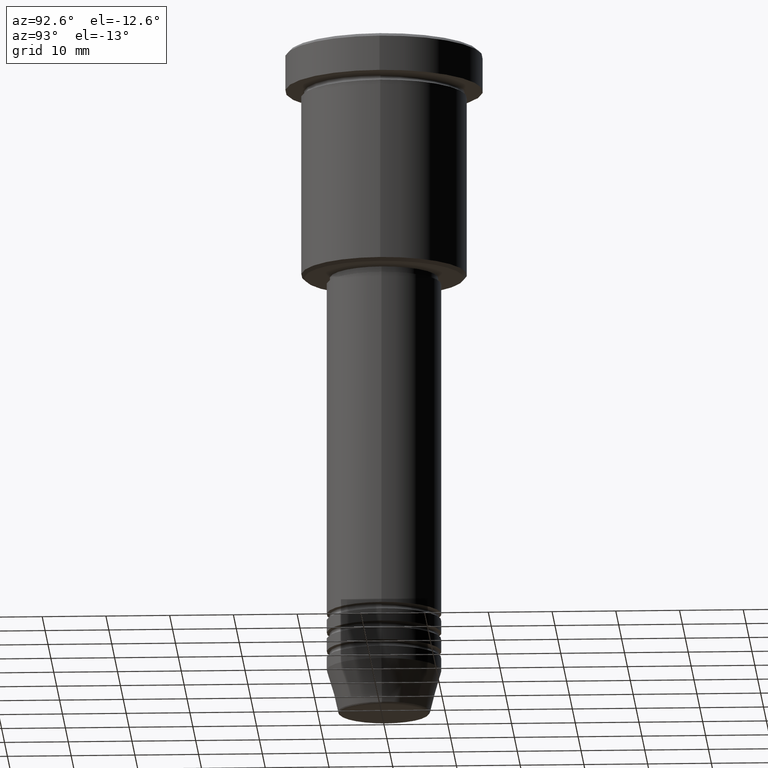
[diagram: clean part render]
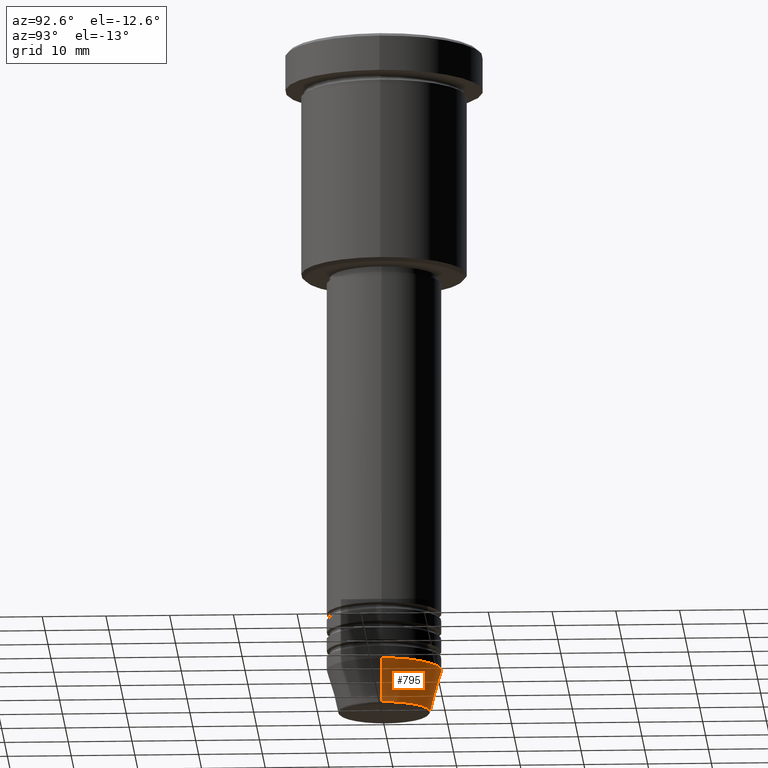
[diagram: same view with one face highlighted and labeled with its STEP entity id]
A machine part, auxiliary view. The second image highlights one B-rep face of the part: STEP entity #795.
In plain terms, the highlighted conical surface has half-angle 15 deg.
Its self-contained STEP definition (entity closure, byte-faithful):
#8 = DIRECTION ( 'NONE',  ( 0.2588190451025213501, 0.000000000000000000, 0.9659258262890680902 ) ) ;
#30 = DIRECTION ( 'NONE',  ( -0.000000000000000000, -0.000000000000000000, 1.000000000000000000 ) ) ;
#60 = EDGE_CURVE ( 'NONE', #876, #766, #734, .T. ) ;
#67 = CIRCLE ( 'NONE', #695, 7.223655072137197486 ) ;
#113 = LINE ( 'NONE', #180, #789 ) ;
#118 = VERTEX_POINT ( 'NONE', #893 ) ;
#156 = AXIS2_PLACEMENT_3D ( 'NONE', #440, #533, #907 ) ;
#180 = CARTESIAN_POINT ( 'NONE',  ( 9.000000000000000000, 0.000000000000000000, -99.00000000000000000 ) ) ;
#196 = VECTOR ( 'NONE', #310, 1000.000000000000000 ) ;
#233 = ORIENTED_EDGE ( 'NONE', *, *, #872, .T. ) ;
#267 = LINE ( 'NONE', #303, #196 ) ;
#297 = CARTESIAN_POINT ( 'NONE',  ( -9.000000000000000000, 1.102182119232617714E-15, -99.00000000000000000 ) ) ;
#303 = CARTESIAN_POINT ( 'NONE',  ( -9.000000000000000000, 1.102182119232617714E-15, -99.00000000000000000 ) ) ;
#309 = CARTESIAN_POINT ( 'NONE',  ( 0.000000000000000000, 0.000000000000000000, -99.00000000000000000 ) ) ;
#310 = DIRECTION ( 'NONE',  ( -0.2588190451025213501, 3.169619151431772337E-17, 0.9659258262890680902 ) ) ;
#317 = CARTESIAN_POINT ( 'NONE',  ( 9.000000000000000000, 0.000000000000000000, -99.00000000000000000 ) ) ;
#403 = VERTEX_POINT ( 'NONE', #685 ) ;
#440 = CARTESIAN_POINT ( 'NONE',  ( 0.000000000000000000, 0.000000000000000000, -99.00000000000000000 ) ) ;
#474 = ORIENTED_EDGE ( 'NONE', *, *, #570, .T. ) ;
#496 = CONICAL_SURFACE ( 'NONE', #156, 9.000000000000000000, 0.2617993877991500740 ) ;
#533 = DIRECTION ( 'NONE',  ( -0.000000000000000000, -0.000000000000000000, 1.000000000000000000 ) ) ;
#570 = EDGE_CURVE ( 'NONE', #118, #403, #67, .T. ) ;
#641 = ORIENTED_EDGE ( 'NONE', *, *, #60, .F. ) ;
#685 = CARTESIAN_POINT ( 'NONE',  ( -7.223655072137198374, 9.934123627281771026E-16, -105.6294095225512422 ) ) ;
#695 = AXIS2_PLACEMENT_3D ( 'NONE', #938, #30, #845 ) ;
#734 = CIRCLE ( 'NONE', #829, 9.000000000000000000 ) ;
#736 = EDGE_LOOP ( 'NONE', ( #474, #233, #641, #866 ) ) ;
#766 = VERTEX_POINT ( 'NONE', #297 ) ;
#789 = VECTOR ( 'NONE', #8, 1000.000000000000000 ) ;
#795 = ADVANCED_FACE ( 'NONE', ( #1001 ), #496, .T. ) ;
#829 = AXIS2_PLACEMENT_3D ( 'NONE', #309, #875, #865 ) ;
#845 = DIRECTION ( 'NONE',  ( 1.000000000000000000, 0.000000000000000000, 0.000000000000000000 ) ) ;
#865 = DIRECTION ( 'NONE',  ( 1.000000000000000000, 0.000000000000000000, 0.000000000000000000 ) ) ;
#866 = ORIENTED_EDGE ( 'NONE', *, *, #1119, .F. ) ;
#872 = EDGE_CURVE ( 'NONE', #403, #766, #267, .T. ) ;
#875 = DIRECTION ( 'NONE',  ( -0.000000000000000000, -0.000000000000000000, 1.000000000000000000 ) ) ;
#876 = VERTEX_POINT ( 'NONE', #317 ) ;
#893 = CARTESIAN_POINT ( 'NONE',  ( 7.223655072137197486, 0.000000000000000000, -105.6294095225512422 ) ) ;
#907 = DIRECTION ( 'NONE',  ( 1.000000000000000000, 0.000000000000000000, 0.000000000000000000 ) ) ;
#938 = CARTESIAN_POINT ( 'NONE',  ( 0.000000000000000000, 0.000000000000000000, -105.6294095225512422 ) ) ;
#1001 = FACE_OUTER_BOUND ( 'NONE', #736, .T. ) ;
#1119 = EDGE_CURVE ( 'NONE', #118, #876, #113, .T. ) ;